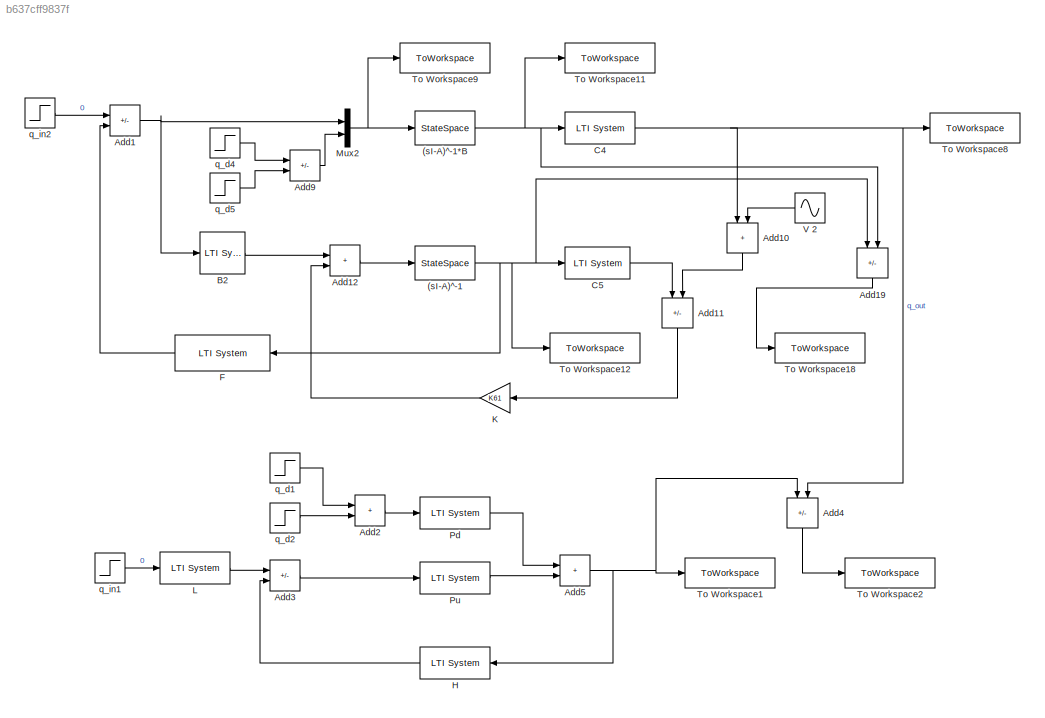
MODEL slx_b637cff9837f
KIND model
CONFIG AbsTol = auto
CONFIG EnableMultiTasking = off
CONFIG FixedStep = auto
CONFIG MaxStep = auto
CONFIG MinStep = auto
CONFIG RelTol = 1e-3
CONFIG SampleTimeConstraint = Unconstrained
CONFIG SolverName = VariableStepAuto
CONFIG StartTime = 0.0
CONFIG StopTime = 15
BLOCK [StateSpace] (sI-A)^-1
  A = matA1
  B = eye(3)
  C = eye(3)
  D = [[0 0 0];[0 0 0];[0 0 0]]
  InitialCondition = 0
BLOCK [StateSpace] (sI-A)^-1*B
  A = matA1
  B = matB1
  C = eye(3)
  D = [[0 0];[0 0];[0 0]]
  InitialCondition = 0
BLOCK [Sum] Add1
  IconShape = rectangular
  Inputs = +-
BLOCK [Sum] Add10
  IconShape = rectangular
  NameLocation = left
BLOCK [Sum] Add11
  IconShape = rectangular
  Inputs = -+
  NameLocation = left
BLOCK [Sum] Add12
  IconShape = rectangular
BLOCK [Sum] Add19
  IconShape = rectangular
  Inputs = -+
  NameLocation = left
BLOCK [Sum] Add2
  IconShape = rectangular
BLOCK [Sum] Add3
  IconShape = rectangular
  Inputs = +-
BLOCK [Sum] Add4
  IconShape = rectangular
  Inputs = +-
  NameLocation = left
BLOCK [Sum] Add5
  IconShape = rectangular
BLOCK [Sum] Add9
  IconShape = rectangular
  Inputs = +-
BLOCK [Reference] B2  REF=cstblocks/LTI System
  SourceBlock = cstblocks/LTI System
  SourceType = LTI Block
BLOCK [Reference] C4  REF=cstblocks/LTI System
  SourceBlock = cstblocks/LTI System
  SourceType = LTI Block
BLOCK [Reference] C5  REF=cstblocks/LTI System
  SourceBlock = cstblocks/LTI System
  SourceType = LTI Block
BLOCK [Reference] F  REF=cstblocks/LTI System
  SourceBlock = cstblocks/LTI System
  SourceType = LTI Block
BLOCK [Reference] H  REF=cstblocks/LTI System
  SourceBlock = cstblocks/LTI System
  SourceType = LTI Block
BLOCK [Gain] K
  Gain = K61
  Multiplication = Matrix(u*K)
BLOCK [Reference] L  REF=cstblocks/LTI System
  SourceBlock = cstblocks/LTI System
  SourceType = LTI Block
BLOCK [Mux] Mux2
  DisplayOption = bar
  Inputs = 2
BLOCK [Reference] Pd  REF=cstblocks/LTI System
  SourceBlock = cstblocks/LTI System
  SourceType = LTI Block
BLOCK [Reference] Pu  REF=cstblocks/LTI System
  SourceBlock = cstblocks/LTI System
  SourceType = LTI Block
BLOCK [ToWorkspace] To Workspace1
  FixptAsFi = on
  MaxDataPoints = inf
  SampleTime = -1
  SaveFormat = Timeseries
  VariableName = y8s
BLOCK [ToWorkspace] To Workspace11
  FixptAsFi = on
  MaxDataPoints = inf
  SampleTime = -1
  SaveFormat = Timeseries
  VariableName = x8
BLOCK [ToWorkspace] To Workspace12
  FixptAsFi = on
  MaxDataPoints = inf
  SampleTime = -1
  SaveFormat = Timeseries
  VariableName = xe8
BLOCK [ToWorkspace] To Workspace18
  FixptAsFi = on
  MaxDataPoints = inf
  SampleTime = -1
  SaveFormat = Timeseries
  VariableName = e8
BLOCK [ToWorkspace] To Workspace2
  FixptAsFi = on
  MaxDataPoints = inf
  SampleTime = -1
  SaveFormat = Timeseries
  VariableName = error8
BLOCK [ToWorkspace] To Workspace8
  FixptAsFi = on
  MaxDataPoints = inf
  SampleTime = -1
  SaveFormat = Timeseries
  VariableName = y8
BLOCK [ToWorkspace] To Workspace9
  FixptAsFi = on
  MaxDataPoints = inf
  SampleTime = -1
  SaveFormat = Timeseries
  VariableName = u8
BLOCK [Sin] V 2
  Amplitude = 0
  Frequency = 10
  SampleTime = 0
BLOCK [Step] q_d1
  After = 12
  SampleTime = 0
  Time = 0
BLOCK [Step] q_d2
  After = -12
  SampleTime = 0
  Time = 2.3
BLOCK [Step] q_d4
  After = 12
  SampleTime = 0
  Time = 0
BLOCK [Step] q_d5
  After = 12
  SampleTime = 0
  Time = 2.3
BLOCK [Step] q_in1
  After = 0
  SampleTime = 0
  Time = 0
BLOCK [Step] q_in2
  After = 0
  SampleTime = 0
  Time = 0
NET (sI-A)^-1*B:1 -> Add19:2, C4:1, To Workspace11:1
NET (sI-A)^-1:1 -> Add19:1, C5:1, F:1, To Workspace12:1
LINE Add10:1 -> Add11:2
LINE Add11:1 -> K:1
LINE Add12:1 -> (sI-A)^-1:1
LINE Add19:1 -> To Workspace18:1
NET Add1:1 -> B2:1, Mux2:1
LINE Add2:1 -> Pd:1
LINE Add3:1 -> Pu:1
LINE Add4:1 -> To Workspace2:1
NET Add5:1 -> Add4:1, H:1, To Workspace1:1
LINE Add9:1 -> Mux2:2
LINE B2:1 -> Add12:1
NET C4:1 -> Add10:1, Add4:2, To Workspace8:1
LINE C5:1 -> Add11:1
LINE F:1 -> Add1:2
LINE H:1 -> Add3:2
LINE K:1 -> Add12:2
LINE L:1 -> Add3:1
NET Mux2:1 -> (sI-A)^-1*B:1, To Workspace9:1
LINE Pd:1 -> Add5:1
LINE Pu:1 -> Add5:2
LINE V 2:1 -> Add10:2
LINE q_d1:1 -> Add2:1
LINE q_d2:1 -> Add2:2
LINE q_d4:1 -> Add9:1
LINE q_d5:1 -> Add9:2
LINE q_in1:1 -> L:1
LINE q_in2:1 -> Add1:1
note: NET lines group one-source signal fan-out (src -> all destinations, sorted); 1:1 wires keep LINE
